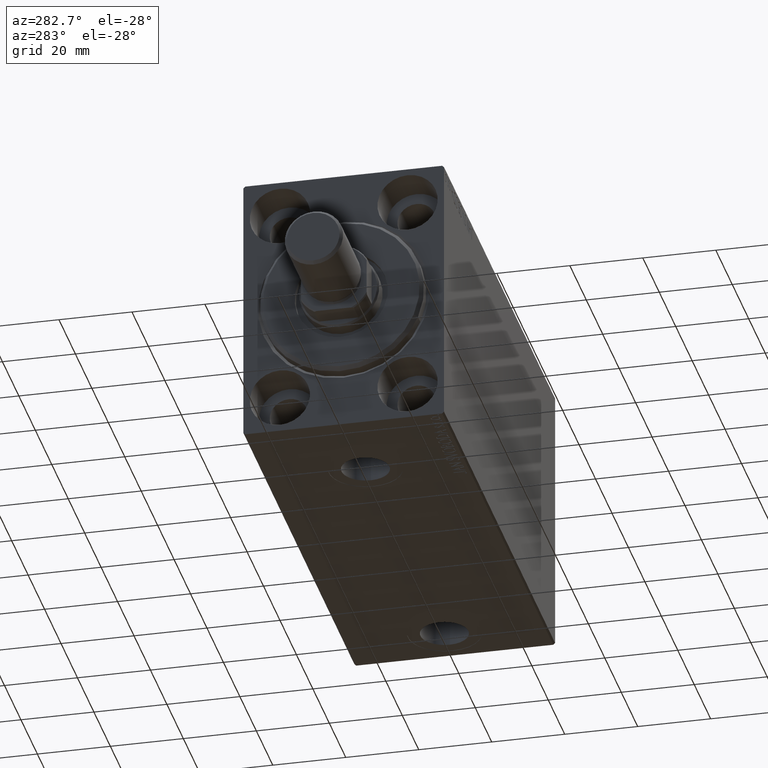
[diagram: clean part render]
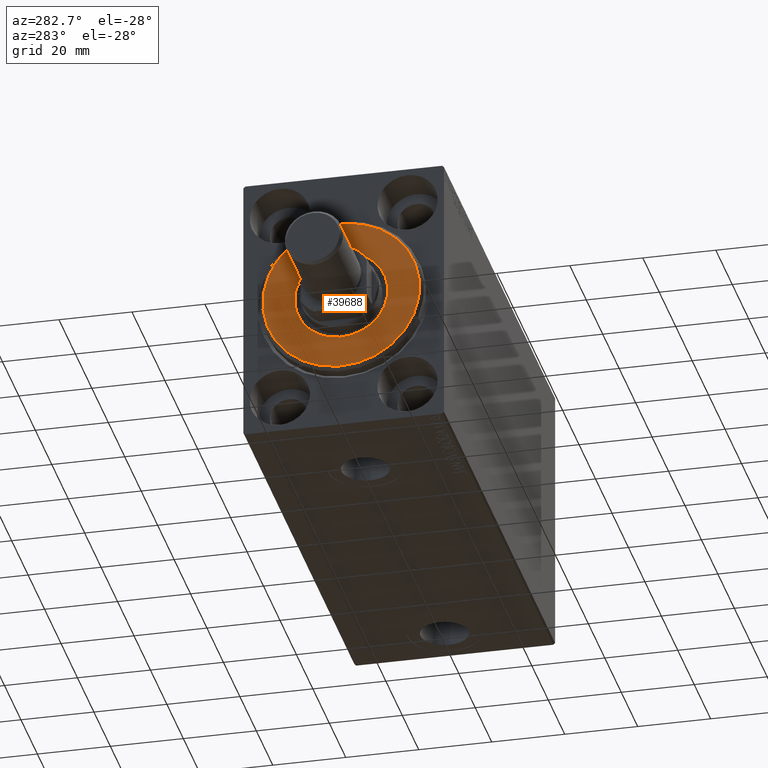
[diagram: same view with one face highlighted and labeled with its STEP entity id]
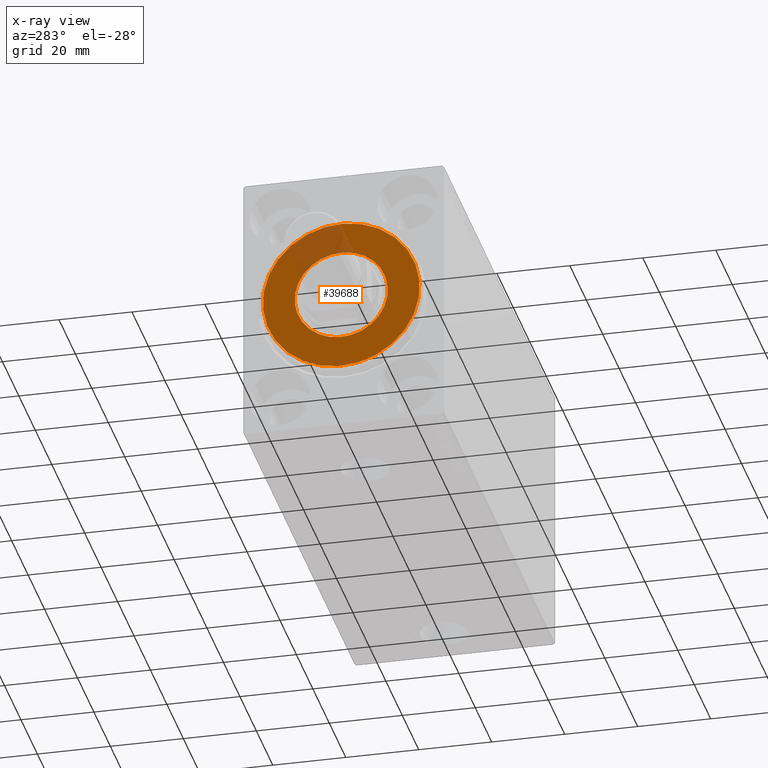
[diagram: x-ray of the same camera — body ghosted, the highlighted face saturated]
A machine part, auxiliary view. The second image highlights one B-rep face of the part: STEP entity #39688.
The next image is the same camera in x-ray: the body ghosted, the highlighted face saturated — about 16% of this face is hidden behind the body in this view.
In plain terms, the highlighted planar face has unit normal (-1, 0, 0).
Its self-contained STEP definition (entity closure, byte-faithful):
#386 = CARTESIAN_POINT ( 'NONE',  ( 3.000000000000000000, 0.000000000000000000, 0.000000000000000000 ) ) ;
#749 = DIRECTION ( 'NONE',  ( 0.000000000000000000, 0.000000000000000000, -1.000000000000000000 ) ) ;
#1911 = CIRCLE ( 'NONE', #3355, 21.50000000000000355 ) ;
#3192 = CIRCLE ( 'NONE', #5341, 21.50000000000000355 ) ;
#3355 = AXIS2_PLACEMENT_3D ( 'NONE', #5922, #29971, #33330 ) ;
#3991 = EDGE_CURVE ( 'NONE', #19478, #33983, #35248, .T. ) ;
#4564 = PLANE ( 'NONE',  #22633 ) ;
#5287 = ORIENTED_EDGE ( 'NONE', *, *, #3991, .T. ) ;
#5341 = AXIS2_PLACEMENT_3D ( 'NONE', #30701, #20139, #12739 ) ;
#5403 = CARTESIAN_POINT ( 'NONE',  ( 3.000000000000000000, 0.000000000000000000, 12.75000000000000000 ) ) ;
#5498 = ORIENTED_EDGE ( 'NONE', *, *, #32798, .T. ) ;
#5922 = CARTESIAN_POINT ( 'NONE',  ( 3.000000000000000000, 0.000000000000000000, 0.000000000000000000 ) ) ;
#7184 = CARTESIAN_POINT ( 'NONE',  ( 3.000000000000000000, 0.000000000000000000, 21.50000000000000355 ) ) ;
#10493 = VERTEX_POINT ( 'NONE', #32195 ) ;
#11590 = AXIS2_PLACEMENT_3D ( 'NONE', #30917, #27769, #31573 ) ;
#12568 = CARTESIAN_POINT ( 'NONE',  ( 3.000000000000000000, 1.561424668912874914E-15, -12.75000000000000000 ) ) ;
#12739 = DIRECTION ( 'NONE',  ( 0.000000000000000000, 0.000000000000000000, -1.000000000000000000 ) ) ;
#13575 = ORIENTED_EDGE ( 'NONE', *, *, #25169, .T. ) ;
#14096 = DIRECTION ( 'NONE',  ( 0.000000000000000000, 0.000000000000000000, -1.000000000000000000 ) ) ;
#14776 = VERTEX_POINT ( 'NONE', #7184 ) ;
#15671 = EDGE_LOOP ( 'NONE', ( #22589, #5498 ) ) ;
#18269 = FACE_OUTER_BOUND ( 'NONE', #15671, .T. ) ;
#19478 = VERTEX_POINT ( 'NONE', #5403 ) ;
#20139 = DIRECTION ( 'NONE',  ( 1.000000000000000000, -0.000000000000000000, 0.000000000000000000 ) ) ;
#20540 = EDGE_CURVE ( 'NONE', #14776, #10493, #1911, .T. ) ;
#22086 = DIRECTION ( 'NONE',  ( 1.000000000000000000, -0.000000000000000000, 0.000000000000000000 ) ) ;
#22589 = ORIENTED_EDGE ( 'NONE', *, *, #20540, .T. ) ;
#22633 = AXIS2_PLACEMENT_3D ( 'NONE', #41834, #22086, #749 ) ;
#25169 = EDGE_CURVE ( 'NONE', #33983, #19478, #36454, .T. ) ;
#27769 = DIRECTION ( 'NONE',  ( -1.000000000000000000, 0.000000000000000000, -0.000000000000000000 ) ) ;
#29971 = DIRECTION ( 'NONE',  ( 1.000000000000000000, -0.000000000000000000, 0.000000000000000000 ) ) ;
#30701 = CARTESIAN_POINT ( 'NONE',  ( 3.000000000000000000, 0.000000000000000000, 0.000000000000000000 ) ) ;
#30917 = CARTESIAN_POINT ( 'NONE',  ( 3.000000000000000000, 0.000000000000000000, 0.000000000000000000 ) ) ;
#31573 = DIRECTION ( 'NONE',  ( 0.000000000000000000, 0.000000000000000000, -1.000000000000000000 ) ) ;
#32195 = CARTESIAN_POINT ( 'NONE',  ( 3.000000000000000000, 2.694222958124177598E-15, -21.50000000000000355 ) ) ;
#32798 = EDGE_CURVE ( 'NONE', #10493, #14776, #3192, .T. ) ;
#33330 = DIRECTION ( 'NONE',  ( 0.000000000000000000, 0.000000000000000000, -1.000000000000000000 ) ) ;
#33579 = AXIS2_PLACEMENT_3D ( 'NONE', #386, #34530, #14096 ) ;
#33983 = VERTEX_POINT ( 'NONE', #12568 ) ;
#34530 = DIRECTION ( 'NONE',  ( -1.000000000000000000, 0.000000000000000000, -0.000000000000000000 ) ) ;
#35248 = CIRCLE ( 'NONE', #11590, 12.75000000000000000 ) ;
#36454 = CIRCLE ( 'NONE', #33579, 12.75000000000000000 ) ;
#38260 = FACE_BOUND ( 'NONE', #43791, .T. ) ;
#39688 = ADVANCED_FACE ( 'NONE', ( #18269, #38260 ), #4564, .T. ) ;
#41834 = CARTESIAN_POINT ( 'NONE',  ( 3.000000000000000000, 0.000000000000000000, 0.000000000000000000 ) ) ;
#43791 = EDGE_LOOP ( 'NONE', ( #5287, #13575 ) ) ;